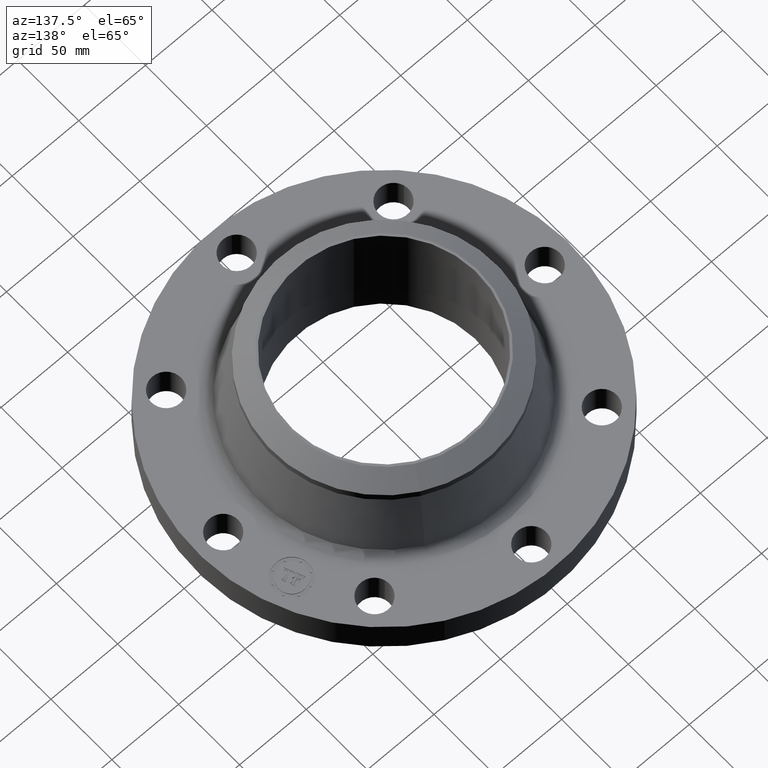
[diagram: clean part render]
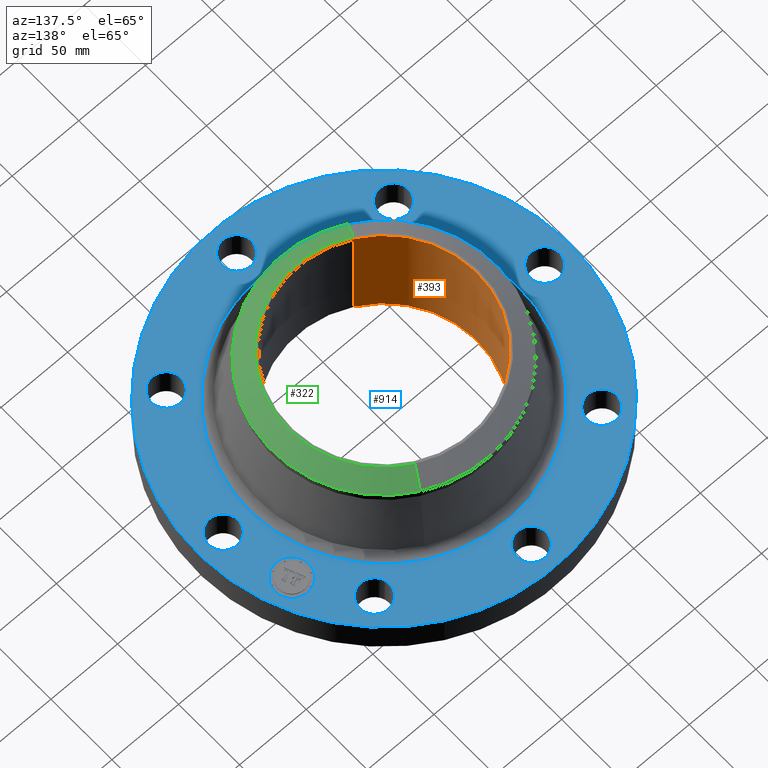
[diagram: same view with three faces highlighted in distinct colors, each labeled with its STEP entity id]
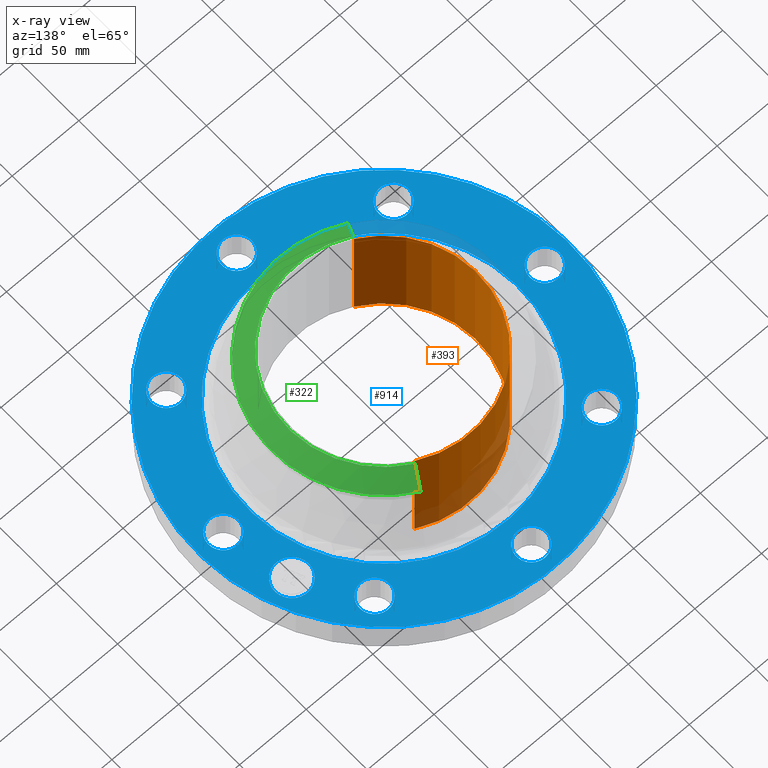
[diagram: x-ray of the same camera — body ghosted, the three highlighted faces saturated]
A machine part, auxiliary view with three faces highlighted in distinct colors.
The next image is the same camera in x-ray (body ghosted, the three faces saturated) — at least one of them is partly hidden behind the body in this view.
Their STEP definitions:

[orange] entity #393 — the highlighted cylindrical surface (partial cylindrical patch) has radius 69.8627 mm, axis along (0, 0, -1).
#346=AXIS2_PLACEMENT_3D('Circle Axis2P3D',#344,#345,$) ;
#366=AXIS2_PLACEMENT_3D('Cylinder Axis2P3D',#363,#364,#365) ;
#377=AXIS2_PLACEMENT_3D('Circle Axis2P3D',#375,#376,$) ;
#344=CARTESIAN_POINT('Axis2P3D Location',(0.,-1.39870617276E-016,3.50000000001)) ;
#348=CARTESIAN_POINT('Vertex',(-1.31865994394,-2.41379083649,3.50000000001)) ;
#350=CARTESIAN_POINT('Vertex',(1.31865994394,2.41379083649,3.50000000001)) ;
#363=CARTESIAN_POINT('Axis2P3D Location',(0.,0.,1.80000000001)) ;
#368=CARTESIAN_POINT('Line Origine',(-1.31865994394,-2.41379083649,1.75000000001)) ;
#372=CARTESIAN_POINT('Vertex',(-1.31865994394,-2.41379083649,-1.81831802458E-014)) ;
#375=CARTESIAN_POINT('Axis2P3D Location',(0.,0.,-1.84629214804E-014)) ;
#379=CARTESIAN_POINT('Vertex',(1.31865994394,2.41379083649,-1.81831802458E-014)) ;
#382=CARTESIAN_POINT('Line Origine',(1.31865994394,2.41379083649,1.75000000001)) ;
#345=DIRECTION('Axis2P3D Direction',(0.,-0.,-0.0393700787402)) ;
#364=DIRECTION('Axis2P3D Direction',(0.,0.,-0.0393700787402)) ;
#365=DIRECTION('Axis2P3D XDirection',(0.0188750212049,0.0345504945626,0.)) ;
#369=DIRECTION('Vector Direction',(0.,0.,-0.0393700787402)) ;
#376=DIRECTION('Axis2P3D Direction',(0.,0.,-0.0393700787402)) ;
#383=DIRECTION('Vector Direction',(0.,0.,-0.0393700787402)) ;
#370=VECTOR('Line Direction',#369,0.0393700787402) ;
#384=VECTOR('Line Direction',#383,0.0393700787402) ;
#388=ORIENTED_EDGE('',*,*,#374,.T.) ;
#389=ORIENTED_EDGE('',*,*,#381,.T.) ;
#390=ORIENTED_EDGE('',*,*,#386,.F.) ;
#391=ORIENTED_EDGE('',*,*,#352,.F.) ;
#393=ADVANCED_FACE('PartBody',(#392),#367,.F.) ;
#347=CIRCLE('generated circle',#346,2.75050000001) ;
#378=CIRCLE('generated circle',#377,2.75050000001) ;
#367=CYLINDRICAL_SURFACE('generated cylinder',#366,2.75050000001) ;
#352=EDGE_CURVE('',#349,#351,#347,.T.) ;
#374=EDGE_CURVE('',#349,#373,#371,.T.) ;
#381=EDGE_CURVE('',#373,#380,#378,.T.) ;
#386=EDGE_CURVE('',#351,#380,#385,.T.) ;
#387=EDGE_LOOP('',(#388,#389,#390,#391)) ;
#392=FACE_OUTER_BOUND('',#387,.T.) ;
#371=LINE('Line',#368,#370) ;
#385=LINE('Line',#382,#384) ;
#349=VERTEX_POINT('',#348) ;
#351=VERTEX_POINT('',#350) ;
#373=VERTEX_POINT('',#372) ;
#380=VERTEX_POINT('',#379) ;

[blue] entity #914 — the highlighted planar face has unit normal (0, 0, -1).
#65=AXIS2_PLACEMENT_3D('Circle Axis2P3D',#63,#64,$) ;
#82=AXIS2_PLACEMENT_3D('Circle Axis2P3D',#80,#81,$) ;
#115=AXIS2_PLACEMENT_3D('Circle Axis2P3D',#113,#114,$) ;
#139=AXIS2_PLACEMENT_3D('Circle Axis2P3D',#137,#138,$) ;
#156=AXIS2_PLACEMENT_3D('Circle Axis2P3D',#154,#155,$) ;
#191=AXIS2_PLACEMENT_3D('Circle Axis2P3D',#189,#190,$) ;
#571=AXIS2_PLACEMENT_3D('Circle Axis2P3D',#569,#570,$) ;
#583=AXIS2_PLACEMENT_3D('Circle Axis2P3D',#581,#582,$) ;
#614=AXIS2_PLACEMENT_3D('Circle Axis2P3D',#612,#613,$) ;
#626=AXIS2_PLACEMENT_3D('Circle Axis2P3D',#624,#625,$) ;
#657=AXIS2_PLACEMENT_3D('Circle Axis2P3D',#655,#656,$) ;
#669=AXIS2_PLACEMENT_3D('Circle Axis2P3D',#667,#668,$) ;
#700=AXIS2_PLACEMENT_3D('Circle Axis2P3D',#698,#699,$) ;
#712=AXIS2_PLACEMENT_3D('Circle Axis2P3D',#710,#711,$) ;
#743=AXIS2_PLACEMENT_3D('Circle Axis2P3D',#741,#742,$) ;
#755=AXIS2_PLACEMENT_3D('Circle Axis2P3D',#753,#754,$) ;
#786=AXIS2_PLACEMENT_3D('Circle Axis2P3D',#784,#785,$) ;
#798=AXIS2_PLACEMENT_3D('Circle Axis2P3D',#796,#797,$) ;
#829=AXIS2_PLACEMENT_3D('Circle Axis2P3D',#827,#828,$) ;
#841=AXIS2_PLACEMENT_3D('Circle Axis2P3D',#839,#840,$) ;
#854=AXIS2_PLACEMENT_3D('Plane Axis2P3D',#851,#852,#853) ;
#898=AXIS2_PLACEMENT_3D('Circle Axis2P3D',#896,#897,$) ;
#907=AXIS2_PLACEMENT_3D('Circle Axis2P3D',#905,#906,$) ;
#46=CARTESIAN_POINT('Vertex',(4.36386367279,0.210947236987,1.)) ;
#60=CARTESIAN_POINT('Vertex',(5.13613632725,-0.210947236987,1.)) ;
#63=CARTESIAN_POINT('Axis2P3D Location',(4.75000000002,0.,1.)) ;
#80=CARTESIAN_POINT('Axis2P3D Location',(4.75000000002,0.,1.)) ;
#110=CARTESIAN_POINT('Vertex',(-2.63684046233,-4.82670409042,1.)) ;
#113=CARTESIAN_POINT('Axis2P3D Location',(0.,0.,1.)) ;
#117=CARTESIAN_POINT('Vertex',(2.63684046233,4.82670409042,1.)) ;
#137=CARTESIAN_POINT('Axis2P3D Location',(0.,0.,1.)) ;
#154=CARTESIAN_POINT('Axis2P3D Location',(0.,0.,1.)) ;
#158=CARTESIAN_POINT('Vertex',(1.90603440542,3.48897257628,1.)) ;
#160=CARTESIAN_POINT('Vertex',(-1.90603440542,-3.48897257628,1.)) ;
#189=CARTESIAN_POINT('Axis2P3D Location',(0.,0.,1.)) ;
#559=CARTESIAN_POINT('Vertex',(-3.23487981695,2.93655537345,1.)) ;
#566=CARTESIAN_POINT('Vertex',(-3.48263460435,3.78095904784,1.)) ;
#569=CARTESIAN_POINT('Axis2P3D Location',(-3.35875721065,3.35875721065,1.)) ;
#581=CARTESIAN_POINT('Axis2P3D Location',(-3.35875721065,3.35875721065,1.)) ;
#602=CARTESIAN_POINT('Vertex',(0.210947236987,-4.36386367279,1.)) ;
#609=CARTESIAN_POINT('Vertex',(-0.210947236987,-5.13613632725,1.)) ;
#612=CARTESIAN_POINT('Axis2P3D Location',(2.90853614799E-016,-4.75000000002,1.)) ;
#624=CARTESIAN_POINT('Axis2P3D Location',(2.90853614799E-016,-4.75000000002,1.)) ;
#645=CARTESIAN_POINT('Vertex',(-0.210947236987,4.36386367279,1.)) ;
#652=CARTESIAN_POINT('Vertex',(0.210947236987,5.13613632725,1.)) ;
#655=CARTESIAN_POINT('Axis2P3D Location',(-8.72560844396E-016,4.75000000002,1.)) ;
#667=CARTESIAN_POINT('Axis2P3D Location',(-8.72560844396E-016,4.75000000002,1.)) ;
#688=CARTESIAN_POINT('Vertex',(-2.93655537345,-3.23487981695,1.)) ;
#695=CARTESIAN_POINT('Vertex',(-3.78095904784,-3.48263460435,1.)) ;
#698=CARTESIAN_POINT('Axis2P3D Location',(-3.35875721065,-3.35875721065,1.)) ;
#710=CARTESIAN_POINT('Axis2P3D Location',(-3.35875721065,-3.35875721065,1.)) ;
#731=CARTESIAN_POINT('Vertex',(2.93655537345,3.23487981695,1.)) ;
#738=CARTESIAN_POINT('Vertex',(3.78095904784,3.48263460435,1.)) ;
#741=CARTESIAN_POINT('Axis2P3D Location',(3.35875721065,3.35875721065,1.)) ;
#753=CARTESIAN_POINT('Axis2P3D Location',(3.35875721065,3.35875721065,1.)) ;
#774=CARTESIAN_POINT('Vertex',(-4.36386367279,-0.210947236987,1.)) ;
#781=CARTESIAN_POINT('Vertex',(-5.13613632725,0.210947236987,1.)) ;
#784=CARTESIAN_POINT('Axis2P3D Location',(-4.75000000002,-5.81707229597E-016,1.)) ;
#796=CARTESIAN_POINT('Axis2P3D Location',(-4.75000000002,-5.81707229597E-016,1.)) ;
#817=CARTESIAN_POINT('Vertex',(3.23487981695,-2.93655537345,1.)) ;
#824=CARTESIAN_POINT('Vertex',(3.48263460435,-3.78095904784,1.)) ;
#827=CARTESIAN_POINT('Axis2P3D Location',(3.35875721065,-3.35875721065,1.)) ;
#839=CARTESIAN_POINT('Axis2P3D Location',(3.35875721065,-3.35875721065,1.)) ;
#851=CARTESIAN_POINT('Axis2P3D Location',(0.,5.50000000002,1.)) ;
#896=CARTESIAN_POINT('Axis2P3D Location',(4.38842777945,1.81774630374,1.)) ;
#900=CARTESIAN_POINT('Vertex',(4.19708650182,2.27968501123,1.)) ;
#902=CARTESIAN_POINT('Vertex',(4.57976905707,1.35580759625,1.)) ;
#905=CARTESIAN_POINT('Axis2P3D Location',(4.38842777945,1.81774630374,1.)) ;
#64=DIRECTION('Axis2P3D Direction',(0.,-0.,-0.0393700787402)) ;
#81=DIRECTION('Axis2P3D Direction',(0.,-0.,-0.0393700787402)) ;
#114=DIRECTION('Axis2P3D Direction',(0.,0.,-0.0393700787402)) ;
#138=DIRECTION('Axis2P3D Direction',(0.,0.,-0.0393700787402)) ;
#155=DIRECTION('Axis2P3D Direction',(0.,0.,-0.0393700787402)) ;
#190=DIRECTION('Axis2P3D Direction',(0.,0.,-0.0393700787402)) ;
#570=DIRECTION('Axis2P3D Direction',(0.,0.,-0.0393700787402)) ;
#582=DIRECTION('Axis2P3D Direction',(0.,0.,-0.0393700787402)) ;
#613=DIRECTION('Axis2P3D Direction',(0.,-0.,-0.0393700787402)) ;
#625=DIRECTION('Axis2P3D Direction',(0.,-0.,-0.0393700787402)) ;
#656=DIRECTION('Axis2P3D Direction',(0.,0.,-0.0393700787402)) ;
#668=DIRECTION('Axis2P3D Direction',(0.,0.,-0.0393700787402)) ;
#699=DIRECTION('Axis2P3D Direction',(-0.,0.,-0.0393700787402)) ;
#711=DIRECTION('Axis2P3D Direction',(-0.,0.,-0.0393700787402)) ;
#742=DIRECTION('Axis2P3D Direction',(0.,0.,-0.0393700787402)) ;
#754=DIRECTION('Axis2P3D Direction',(0.,0.,-0.0393700787402)) ;
#785=DIRECTION('Axis2P3D Direction',(-0.,0.,-0.0393700787402)) ;
#797=DIRECTION('Axis2P3D Direction',(-0.,0.,-0.0393700787402)) ;
#828=DIRECTION('Axis2P3D Direction',(0.,-0.,-0.0393700787402)) ;
#840=DIRECTION('Axis2P3D Direction',(0.,-0.,-0.0393700787402)) ;
#852=DIRECTION('Axis2P3D Direction',(0.,0.,-0.0393700787402)) ;
#853=DIRECTION('Axis2P3D XDirection',(0.0393700787402,0.,0.)) ;
#897=DIRECTION('Axis2P3D Direction',(0.,0.,-0.0393700787402)) ;
#906=DIRECTION('Axis2P3D Direction',(0.,0.,-0.0393700787402)) ;
#857=ORIENTED_EDGE('',*,*,#141,.F.) ;
#858=ORIENTED_EDGE('',*,*,#119,.F.) ;
#861=ORIENTED_EDGE('',*,*,#67,.T.) ;
#862=ORIENTED_EDGE('',*,*,#84,.T.) ;
#865=ORIENTED_EDGE('',*,*,#193,.T.) ;
#866=ORIENTED_EDGE('',*,*,#162,.T.) ;
#869=ORIENTED_EDGE('',*,*,#843,.T.) ;
#870=ORIENTED_EDGE('',*,*,#831,.T.) ;
#873=ORIENTED_EDGE('',*,*,#628,.T.) ;
#874=ORIENTED_EDGE('',*,*,#616,.T.) ;
#877=ORIENTED_EDGE('',*,*,#714,.T.) ;
#878=ORIENTED_EDGE('',*,*,#702,.T.) ;
#881=ORIENTED_EDGE('',*,*,#800,.T.) ;
#882=ORIENTED_EDGE('',*,*,#788,.T.) ;
#885=ORIENTED_EDGE('',*,*,#585,.T.) ;
#886=ORIENTED_EDGE('',*,*,#573,.T.) ;
#889=ORIENTED_EDGE('',*,*,#671,.T.) ;
#890=ORIENTED_EDGE('',*,*,#659,.T.) ;
#893=ORIENTED_EDGE('',*,*,#757,.T.) ;
#894=ORIENTED_EDGE('',*,*,#745,.T.) ;
#911=ORIENTED_EDGE('',*,*,#904,.T.) ;
#912=ORIENTED_EDGE('',*,*,#909,.T.) ;
#863=FACE_BOUND('',#860,.T.) ;
#867=FACE_BOUND('',#864,.T.) ;
#871=FACE_BOUND('',#868,.T.) ;
#875=FACE_BOUND('',#872,.T.) ;
#879=FACE_BOUND('',#876,.T.) ;
#883=FACE_BOUND('',#880,.T.) ;
#887=FACE_BOUND('',#884,.T.) ;
#891=FACE_BOUND('',#888,.T.) ;
#895=FACE_BOUND('',#892,.T.) ;
#913=FACE_BOUND('',#910,.T.) ;
#914=ADVANCED_FACE('PartBody',(#859,#863,#867,#871,#875,#879,#883,#887,#891,#895,#913),#855,.F.) ;
#66=CIRCLE('generated circle',#65,0.440000000002) ;
#83=CIRCLE('generated circle',#82,0.440000000002) ;
#116=CIRCLE('generated circle',#115,5.50000000002) ;
#140=CIRCLE('generated circle',#139,5.50000000002) ;
#157=CIRCLE('generated circle',#156,3.97566306328) ;
#192=CIRCLE('generated circle',#191,3.97566306328) ;
#572=CIRCLE('generated circle',#571,0.440000000002) ;
#584=CIRCLE('generated circle',#583,0.440000000002) ;
#615=CIRCLE('generated circle',#614,0.440000000002) ;
#627=CIRCLE('generated circle',#626,0.440000000002) ;
#658=CIRCLE('generated circle',#657,0.440000000002) ;
#670=CIRCLE('generated circle',#669,0.440000000002) ;
#701=CIRCLE('generated circle',#700,0.440000000002) ;
#713=CIRCLE('generated circle',#712,0.440000000002) ;
#744=CIRCLE('generated circle',#743,0.440000000002) ;
#756=CIRCLE('generated circle',#755,0.440000000002) ;
#787=CIRCLE('generated circle',#786,0.440000000002) ;
#799=CIRCLE('generated circle',#798,0.440000000002) ;
#830=CIRCLE('generated circle',#829,0.440000000002) ;
#842=CIRCLE('generated circle',#841,0.440000000002) ;
#899=CIRCLE('generated circle',#898,0.499998853999) ;
#908=CIRCLE('generated circle',#907,0.499998853999) ;
#67=EDGE_CURVE('',#47,#61,#66,.T.) ;
#84=EDGE_CURVE('',#61,#47,#83,.T.) ;
#119=EDGE_CURVE('',#111,#118,#116,.T.) ;
#141=EDGE_CURVE('',#118,#111,#140,.T.) ;
#162=EDGE_CURVE('',#159,#161,#157,.T.) ;
#193=EDGE_CURVE('',#161,#159,#192,.T.) ;
#573=EDGE_CURVE('',#560,#567,#572,.T.) ;
#585=EDGE_CURVE('',#567,#560,#584,.T.) ;
#616=EDGE_CURVE('',#603,#610,#615,.T.) ;
#628=EDGE_CURVE('',#610,#603,#627,.T.) ;
#659=EDGE_CURVE('',#646,#653,#658,.T.) ;
#671=EDGE_CURVE('',#653,#646,#670,.T.) ;
#702=EDGE_CURVE('',#689,#696,#701,.T.) ;
#714=EDGE_CURVE('',#696,#689,#713,.T.) ;
#745=EDGE_CURVE('',#732,#739,#744,.T.) ;
#757=EDGE_CURVE('',#739,#732,#756,.T.) ;
#788=EDGE_CURVE('',#775,#782,#787,.T.) ;
#800=EDGE_CURVE('',#782,#775,#799,.T.) ;
#831=EDGE_CURVE('',#818,#825,#830,.T.) ;
#843=EDGE_CURVE('',#825,#818,#842,.T.) ;
#904=EDGE_CURVE('',#901,#903,#899,.T.) ;
#909=EDGE_CURVE('',#903,#901,#908,.T.) ;
#856=EDGE_LOOP('',(#857,#858)) ;
#860=EDGE_LOOP('',(#861,#862)) ;
#864=EDGE_LOOP('',(#865,#866)) ;
#868=EDGE_LOOP('',(#869,#870)) ;
#872=EDGE_LOOP('',(#873,#874)) ;
#876=EDGE_LOOP('',(#877,#878)) ;
#880=EDGE_LOOP('',(#881,#882)) ;
#884=EDGE_LOOP('',(#885,#886)) ;
#888=EDGE_LOOP('',(#889,#890)) ;
#892=EDGE_LOOP('',(#893,#894)) ;
#910=EDGE_LOOP('',(#911,#912)) ;
#859=FACE_OUTER_BOUND('',#856,.T.) ;
#855=PLANE('',#854) ;
#47=VERTEX_POINT('',#46) ;
#61=VERTEX_POINT('',#60) ;
#111=VERTEX_POINT('',#110) ;
#118=VERTEX_POINT('',#117) ;
#159=VERTEX_POINT('',#158) ;
#161=VERTEX_POINT('',#160) ;
#560=VERTEX_POINT('',#559) ;
#567=VERTEX_POINT('',#566) ;
#603=VERTEX_POINT('',#602) ;
#610=VERTEX_POINT('',#609) ;
#646=VERTEX_POINT('',#645) ;
#653=VERTEX_POINT('',#652) ;
#689=VERTEX_POINT('',#688) ;
#696=VERTEX_POINT('',#695) ;
#732=VERTEX_POINT('',#731) ;
#739=VERTEX_POINT('',#738) ;
#775=VERTEX_POINT('',#774) ;
#782=VERTEX_POINT('',#781) ;
#818=VERTEX_POINT('',#817) ;
#825=VERTEX_POINT('',#824) ;
#901=VERTEX_POINT('',#900) ;
#903=VERTEX_POINT('',#902) ;

[green] entity #322 — the highlighted conical surface has half-angle 52.5 deg.
#270=AXIS2_PLACEMENT_3D('Circle Axis2P3D',#268,#269,$) ;
#295=AXIS2_PLACEMENT_3D('Cone Axis2P3D',#292,#293,#294) ;
#306=AXIS2_PLACEMENT_3D('Circle Axis2P3D',#304,#305,$) ;
#258=CARTESIAN_POINT('Vertex',(-1.58929566048,-2.90918619268,3.11480185205)) ;
#265=CARTESIAN_POINT('Vertex',(1.58929566048,2.90918619268,3.11480185205)) ;
#268=CARTESIAN_POINT('Axis2P3D Location',(0.,0.,3.11480185205)) ;
#292=CARTESIAN_POINT('Axis2P3D Location',(0.,0.,3.50000000001)) ;
#297=CARTESIAN_POINT('Line Origine',(1.46895985029,2.68891296964,3.30740092603)) ;
#301=CARTESIAN_POINT('Vertex',(1.3486240401,2.46863974661,3.50000000001)) ;
#304=CARTESIAN_POINT('Axis2P3D Location',(0.,0.,3.50000000001)) ;
#308=CARTESIAN_POINT('Vertex',(-1.3486240401,-2.46863974661,3.50000000001)) ;
#311=CARTESIAN_POINT('Line Origine',(-1.46895985029,-2.68891296964,3.30740092603)) ;
#269=DIRECTION('Axis2P3D Direction',(0.,0.,-0.0393700787402)) ;
#293=DIRECTION('Axis2P3D Direction',(-0.,-0.,-0.0393700787402)) ;
#294=DIRECTION('Axis2P3D XDirection',(-0.0188750212049,-0.0345504945626,0.)) ;
#298=DIRECTION('Vector Direction',(0.014974561121,0.02741075027,-0.023966985394)) ;
#305=DIRECTION('Axis2P3D Direction',(0.,-0.,-0.0393700787402)) ;
#312=DIRECTION('Vector Direction',(-0.014974561121,-0.02741075027,-0.023966985394)) ;
#299=VECTOR('Line Direction',#298,0.0393700787402) ;
#313=VECTOR('Line Direction',#312,0.0393700787402) ;
#317=ORIENTED_EDGE('',*,*,#303,.F.) ;
#318=ORIENTED_EDGE('',*,*,#310,.T.) ;
#319=ORIENTED_EDGE('',*,*,#315,.T.) ;
#320=ORIENTED_EDGE('',*,*,#272,.F.) ;
#322=ADVANCED_FACE('PartBody',(#321),#296,.T.) ;
#271=CIRCLE('generated circle',#270,3.31500000001) ;
#307=CIRCLE('generated circle',#306,2.81300000001) ;
#296=CONICAL_SURFACE('Cone',#295,2.81300000001,0.916297857297) ;
#272=EDGE_CURVE('',#266,#259,#271,.T.) ;
#303=EDGE_CURVE('',#302,#266,#300,.T.) ;
#310=EDGE_CURVE('',#302,#309,#307,.T.) ;
#315=EDGE_CURVE('',#309,#259,#314,.T.) ;
#316=EDGE_LOOP('',(#317,#318,#319,#320)) ;
#321=FACE_OUTER_BOUND('',#316,.T.) ;
#300=LINE('Line',#297,#299) ;
#314=LINE('Line',#311,#313) ;
#259=VERTEX_POINT('',#258) ;
#266=VERTEX_POINT('',#265) ;
#302=VERTEX_POINT('',#301) ;
#309=VERTEX_POINT('',#308) ;